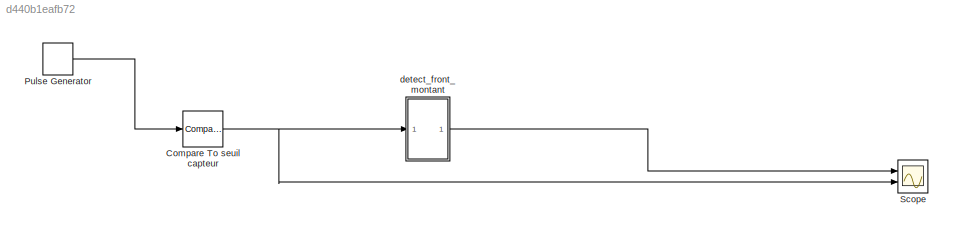
MODEL slx_d440b1eafb72
KIND model
BLOCK [Reference] Compare To seuil capteur  REF=simulink/Logic and Bit
Operations/Compare
To Constant
  OutDataTypeStr = boolean
  Ports = [1, 1]
  SourceBlock = simulink/Logic and Bit\nOperations/Compare\nTo Constant
  SourceType = Compare To Constant
  ZeroCross = on
  const = 0.5
  relop = >=
BLOCK [DiscretePulseGenerator] Pulse Generator
  Period = 3
  Ports = [0, 1]
  PulseType = Time based
  PulseWidth = 50
BLOCK [Scope] Scope
  DataFormat = StructureWithTime
  Floating = off
  NumInputPorts = 2
  Ports = [2]
  SampleTime = 0
  ShowLegends = off
  YMax = 5~5
  YMin = -5~-5
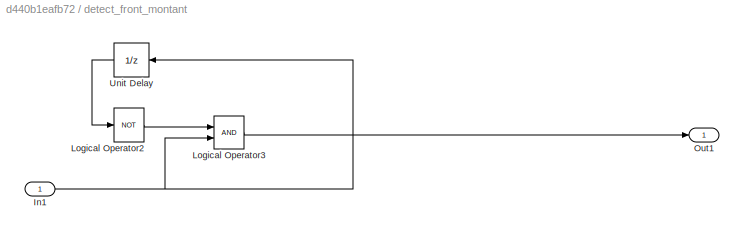
BLOCK [SubSystem] detect_front_montant
  Ports = [1, 1]
  RequestExecContextInheritance = off
BLOCK [Inport] detect_front_montant/In1
  IconDisplay = Port number
BLOCK [Logic] detect_front_montant/Logical Operator2
  AllPortsSameDT = off
  Operator = NOT
  OutDataTypeStr = boolean
  Ports = [1, 1]
BLOCK [Logic] detect_front_montant/Logical Operator3
  AllPortsSameDT = off
  OutDataTypeStr = boolean
  Ports = [2, 1]
BLOCK [Outport] detect_front_montant/Out1
  IconDisplay = Port number
BLOCK [UnitDelay] detect_front_montant/Unit Delay
  InputProcessing = Elements as channels (sample based)
  SampleTime = -1
NET Compare To seuil capteur:1 -> Scope:2, detect_front_montant:1
LINE Pulse Generator:1 -> Compare To seuil capteur:1
NET detect_front_montant/In1:1 -> detect_front_montant/Logical Operator3:2, detect_front_montant/Unit Delay:1
LINE detect_front_montant/Logical Operator2:1 -> detect_front_montant/Logical Operator3:1
LINE detect_front_montant/Logical Operator3:1 -> detect_front_montant/Out1:1
LINE detect_front_montant/Unit Delay:1 -> detect_front_montant/Logical Operator2:1
LINE detect_front_montant:1 -> Scope:1
note: NET lines group one-source signal fan-out (src -> all destinations, sorted); 1:1 wires keep LINE
